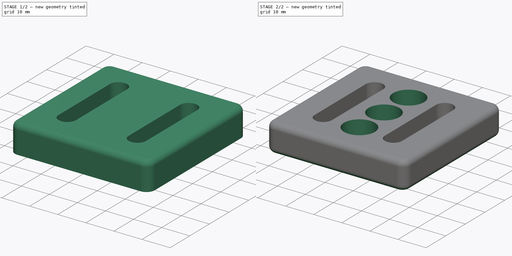
[diagram: build sequence overview — one tinted view per stage of 2, left to right]
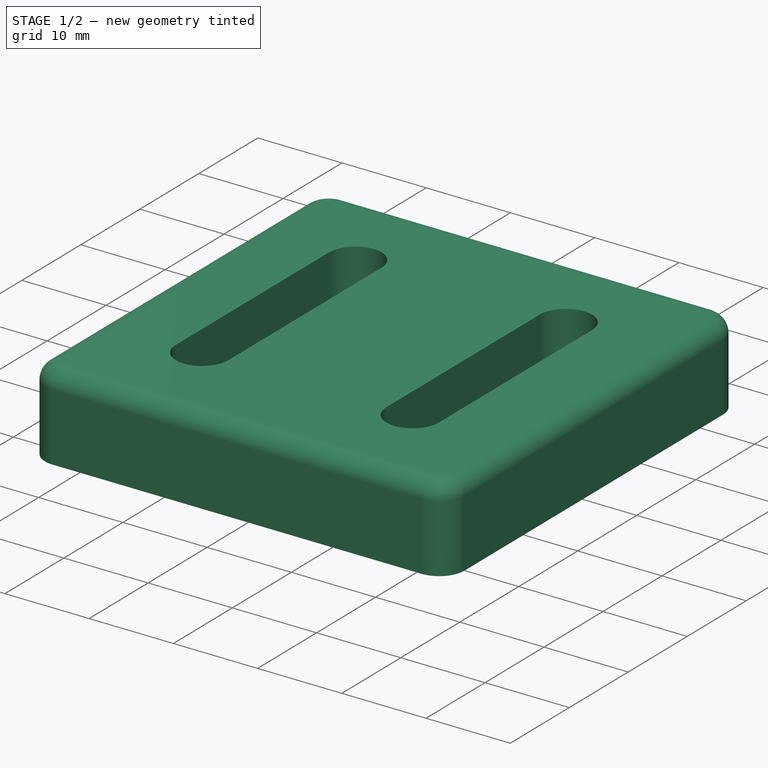
[diagram: stage 1 of 2 — iso view after this stage's code; geometry added in this stage tinted green]
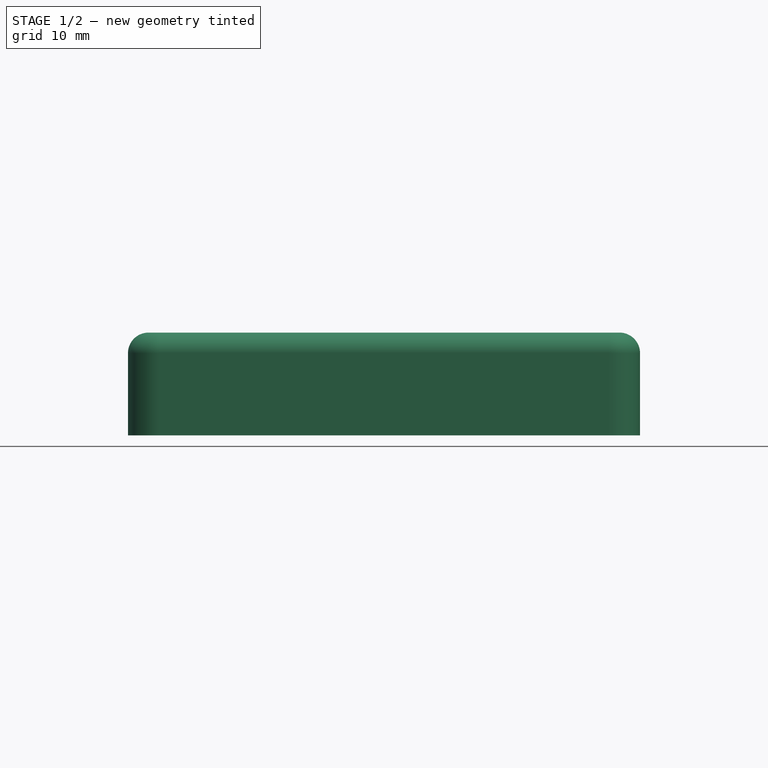
[diagram: stage 1 of 2 — front view after this stage's code; geometry added in this stage tinted green]
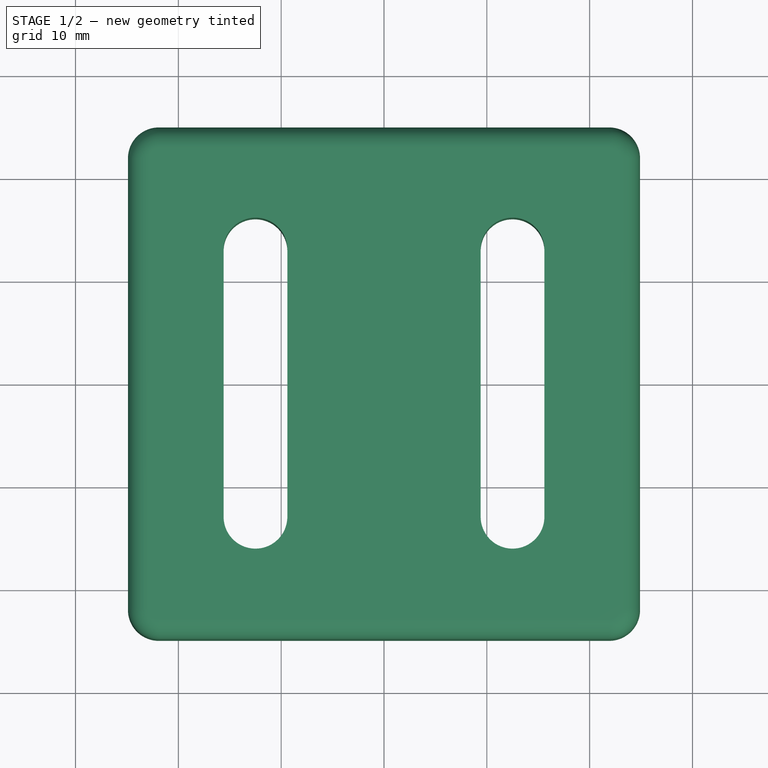
[diagram: stage 1 of 2 — top view after this stage's code; geometry added in this stage tinted green]
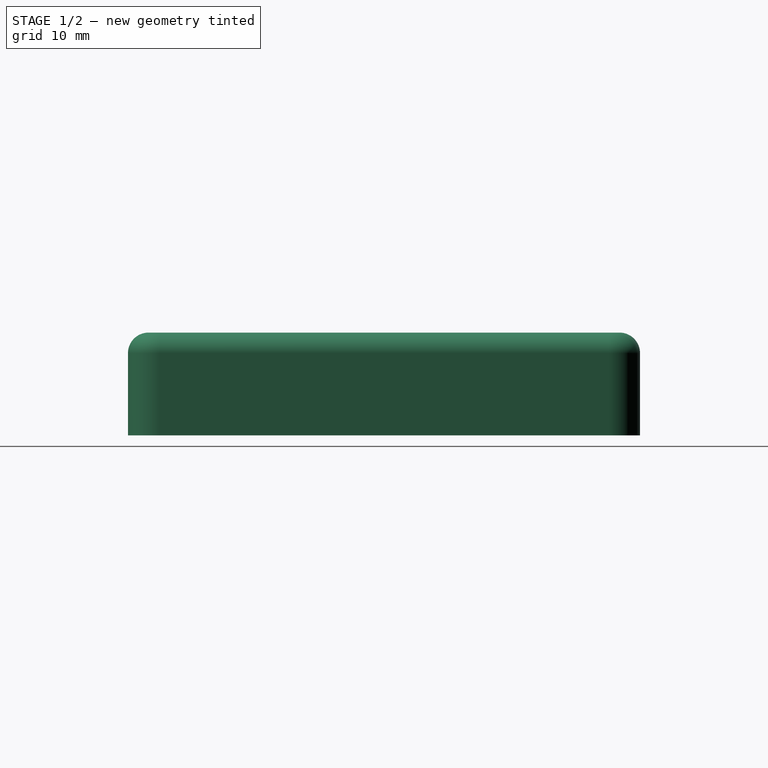
[diagram: stage 1 of 2 — right view after this stage's code; geometry added in this stage tinted green]
FCSTD DOCUMENT  (FreeCAD 0.20R29410 (Git))
Label: BasePlate-50x50
License: All rights reserved
LicenseURL: http://en.wikipedia.org/wiki/All_rights_reserved
objects: Sketcher::SketchObject×2, PartDesign::Fillet×2, PartDesign::Pad×1, PartDesign::Hole×1, PartDesign::Body×1
note: 11 computed .brp shape members not serialized (recipe doc carries the construction recipe); baked Part::Feature solids carry a one-line shape summary decoded from their .brp

FEATURE [Sketcher::SketchObject] Sketch
  FullyConstrained = true
  MapMode = 5
  Support = -> [XY_Plane]
  sketch-geometry (20):
    g0: LineSegment StartX=-21.9 StartY=24.9 StartZ=0 EndX=21.9 EndY=24.9 EndZ=0
    g1: LineSegment StartX=24.9 StartY=21.9 StartZ=0 EndX=24.9 EndY=-21.9 EndZ=0
    g2: LineSegment StartX=21.9 StartY=-24.9 StartZ=0 EndX=-21.9 EndY=-24.9 EndZ=0
    g3: LineSegment StartX=-24.9 StartY=-21.9 StartZ=0 EndX=-24.9 EndY=21.9 EndZ=0
    g4: ArcOfCircle CenterX=-12.5 CenterY=13 CenterZ=0 NormalX=0 NormalY=0 NormalZ=1 AngleXU=0 Radius=3.1 StartAngle=0 EndAngle=3.14159
    g5: ArcOfCircle CenterX=-12.5 CenterY=-13 CenterZ=0 NormalX=0 NormalY=0 NormalZ=1 AngleXU=0 Radius=3.1 StartAngle=3.14159 EndAngle=6.28319
    g6: LineSegment StartX=-15.6 StartY=13 StartZ=0 EndX=-15.6 EndY=-13 EndZ=0
    g7: LineSegment StartX=-9.4 StartY=-13 StartZ=0 EndX=-9.4 EndY=13 EndZ=0
    g8: ArcOfCircle CenterX=12.5 CenterY=13 CenterZ=0 NormalX=0 NormalY=0 NormalZ=1 AngleXU=0 Radius=3.1 StartAngle=2e-16 EndAngle=3.14159
    g9: ArcOfCircle CenterX=12.5 CenterY=-13 CenterZ=0 NormalX=0 NormalY=0 NormalZ=1 AngleXU=0 Radius=3.1 StartAngle=3.14159 EndAngle=6.28319
    g10: LineSegment StartX=9.4 StartY=13 StartZ=0 EndX=9.4 EndY=-13 EndZ=0
    g11: LineSegment StartX=15.6 StartY=-13 StartZ=0 EndX=15.6 EndY=13 EndZ=0
    g12: ArcOfCircle CenterX=-21.9 CenterY=21.9 CenterZ=0 NormalX=0 NormalY=0 NormalZ=1 AngleXU=0 Radius=3 StartAngle=1.5708 EndAngle=3.14159
    g13: GeomPoint X=-24.9 Y=24.9 Z=0
    g14: ArcOfCircle CenterX=21.9 CenterY=21.9 CenterZ=0 NormalX=0 NormalY=0 NormalZ=1 AngleXU=0 Radius=3 StartAngle=0 EndAngle=1.5708
    g15: GeomPoint X=24.9 Y=24.9 Z=0
    g16: ArcOfCircle CenterX=21.9 CenterY=-21.9 CenterZ=0 NormalX=0 NormalY=0 NormalZ=1 AngleXU=0 Radius=3 StartAngle=4.71239 EndAngle=6.28319
    g17: GeomPoint X=24.9 Y=-24.9 Z=0
    g18: ArcOfCircle CenterX=-21.9 CenterY=-21.9 CenterZ=0 NormalX=0 NormalY=0 NormalZ=1 AngleXU=0 Radius=3 StartAngle=3.14159 EndAngle=4.71239
    g19: GeomPoint X=-24.9 Y=-24.9 Z=0
  constraints (44):
    c: Horizontal(g0)
    c: Vertical(g3)
    c: Distance(g17,g15) = 49.8
    c: Distance(g19,g17) = 49.8
    c: Symmetric(g17,g19,g-2)
    c: Symmetric(g17,g15,g-1)
    c: Tangent(g4,g6) = -1.5708
    c: Tangent(g6,g5) = -1.5708
    c: Tangent(g5,g7) = -1.5708
    c: Tangent(g7,g4) = -1.5708
    c: Equal(g4,g5)
    c: Vertical(g6)
    c: Tangent(g8,g10) = -1.5708
    c: Tangent(g10,g9) = -1.5708
    c: Tangent(g9,g11) = -1.5708
    c: Tangent(g11,g8) = -1.5708
    c: Equal(g8,g9)
    c: Radius(g4) = 3.1
    c: Equal(g4,g8)
    c: Horizontal(g5,g9)
    c: DistanceX(g5,g9) = 25
    c: Symmetric(g8,g4,g-2)
    c: Symmetric(g9,g8,g-1)
    c: Distance(g8,g9) = 26
    c: PointOnObject(g13,g3)
    c: PointOnObject(g13,g0)
    c: Tangent(g3,g12) = 1.5708
    c: Tangent(g0,g12) = 1.5708
    c: PointOnObject(g15,g0)
    c: PointOnObject(g15,g1)
    c: Tangent(g0,g14) = 1.5708
    c: Tangent(g1,g14) = 1.5708
    c: PointOnObject(g17,g1)
    c: PointOnObject(g17,g2)
    c: Tangent(g1,g16) = 1.5708
    c: Tangent(g2,g16) = 1.5708
    c: PointOnObject(g19,g2)
    c: PointOnObject(g19,g3)
    c: Tangent(g2,g18) = 1.5708
    c: Tangent(g3,g18) = 1.5708
    c: Radius(g12) = 3
    c: Equal(g12,g14)
    c: Equal(g16,g12)
    c: Equal(g18,g12)
FEATURE [PartDesign::Pad] Pad
  Direction = (0,0,1)
  Length = 10
  Length2 = 10
  Profile = -> Sketch
  ReferenceAxis = -> Sketch [N_Axis]
  Refine = true
  Type = 0
FEATURE [PartDesign::Fillet] Fillet
  Base = -> Pad [Edge22]
  BaseFeature = -> Pad
  Radius = 2
  Refine = true
  SupportTransform = false
  UseAllEdges = false
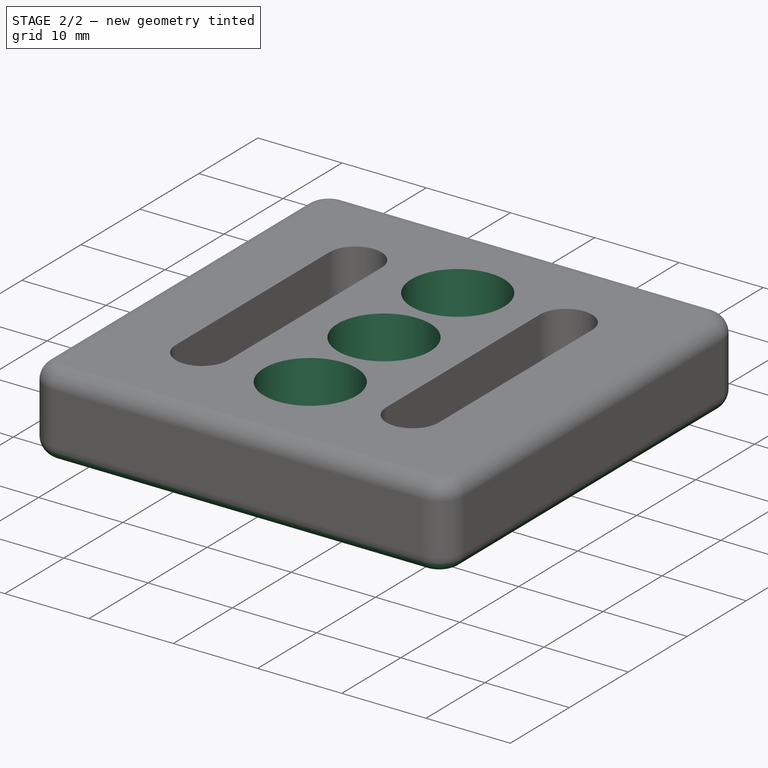
[diagram: stage 2 of 2 — iso view after this stage's code; geometry added in this stage tinted green]
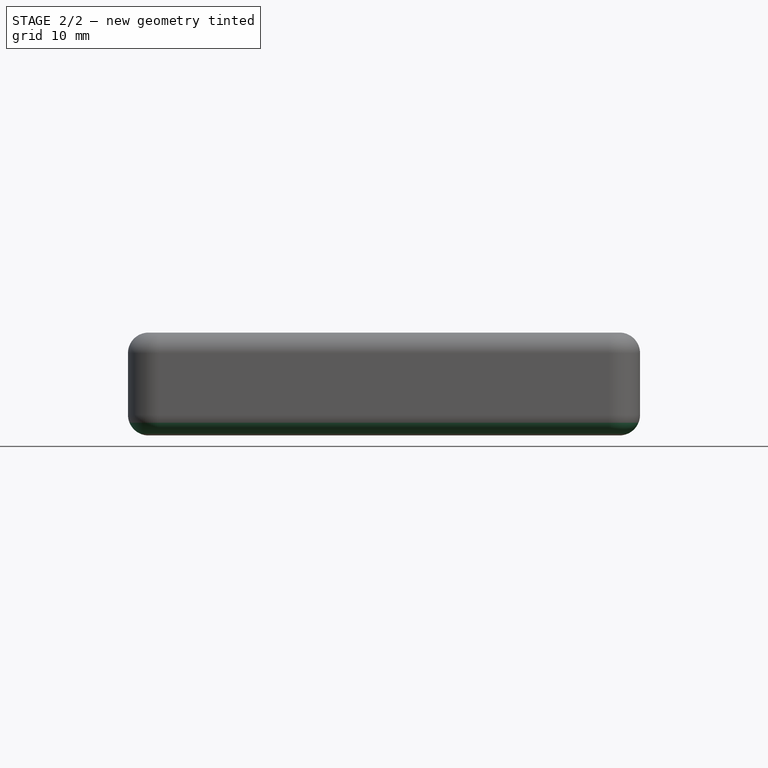
[diagram: stage 2 of 2 — front view after this stage's code; geometry added in this stage tinted green]
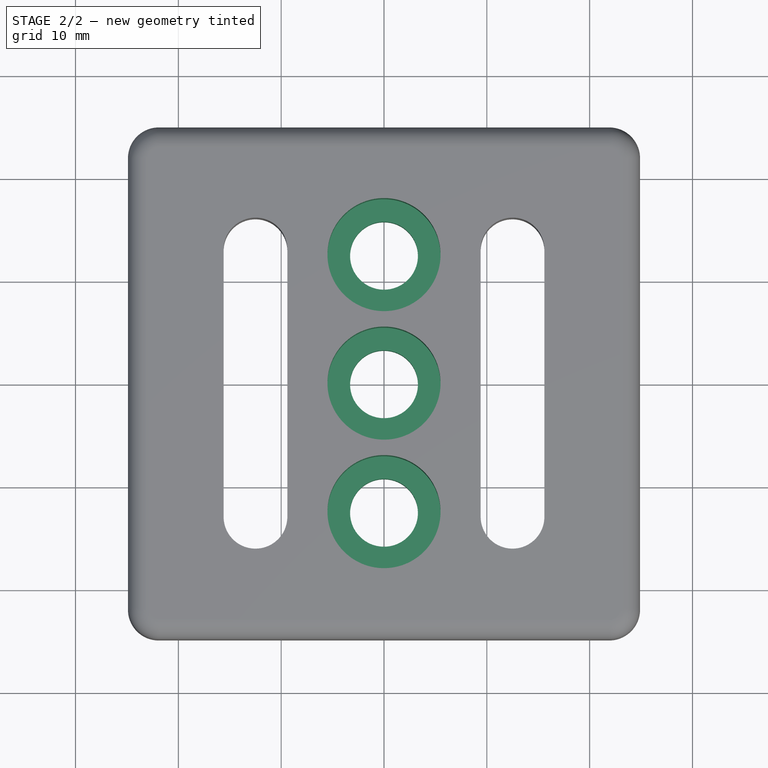
[diagram: stage 2 of 2 — top view after this stage's code; geometry added in this stage tinted green]
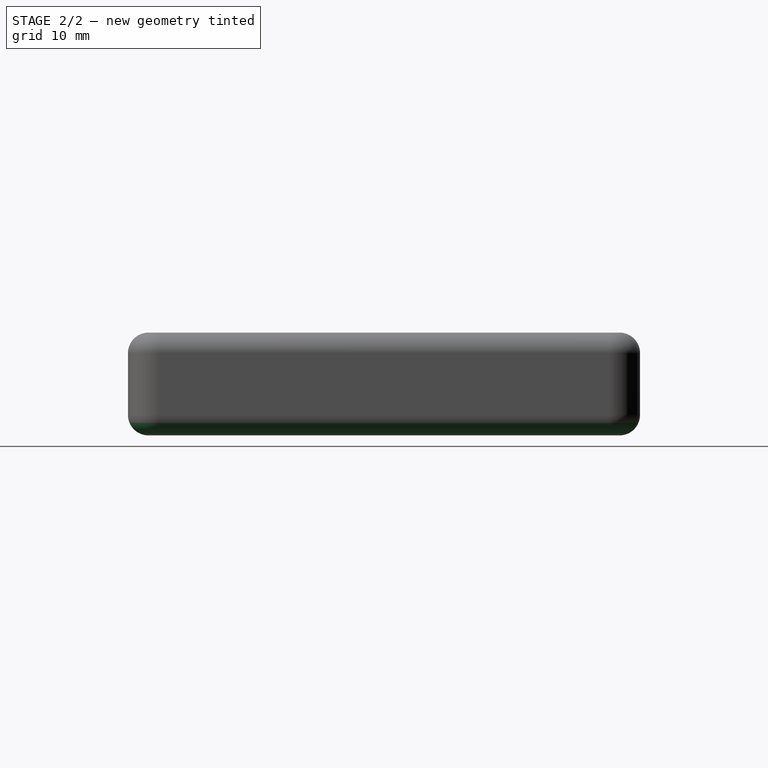
[diagram: stage 2 of 2 — right view after this stage's code; geometry added in this stage tinted green]
FEATURE [PartDesign::Fillet] Fillet001
  Base = -> Fillet [Edge16]
  BaseFeature = -> Fillet
  Radius = 2
  Refine = true
  SupportTransform = false
  UseAllEdges = false
FEATURE [Sketcher::SketchObject] Sketch001
  FullyConstrained = true
  MapMode = 5
  Placement = pos=(0,0,10) rot=(0,0,1;0rad)
  Support = -> [Fillet001]
  sketch-geometry (3):
    g0: Circle CenterX=0 CenterY=0 CenterZ=0 NormalX=0 NormalY=0 NormalZ=1 AngleXU=0 Radius=3
    g1: Circle CenterX=0 CenterY=12.5 CenterZ=0 NormalX=0 NormalY=0 NormalZ=1 AngleXU=0 Radius=3
    g2: Circle CenterX=0 CenterY=-12.5 CenterZ=0 NormalX=0 NormalY=0 NormalZ=1 AngleXU=0 Radius=3
  constraints (7):
    c: Coincident(g0,g-1)
    c: Diameter(g0) = 6
    c: PointOnObject(g1,g-2)
    c: Equal(g1,g0)
    c: Equal(g0,g2)
    c: Symmetric(g1,g2,g-1)
    c: Distance(g1,g2) = 25
FEATURE [PartDesign::Hole] Hole
  BaseFeature = -> Fillet001
  CustomThreadClearance = 0
  Depth = 25
  DepthType = 0
  Diameter = 6.6
  DrillForDepth = false
  DrillPoint = 1
  DrillPointAngle = 118
  HoleCutCountersinkAngle = 90
  HoleCutCustomValues = false
  HoleCutDepth = 6.4
  HoleCutDiameter = 11
  HoleCutType = 1
  ModelThread = false
  Profile = -> Sketch001
  Refine = true
  Tapered = false
  TaperedAngle = 90
  ThreadClass = 0
  ThreadDepth = 25
  ThreadDepthType = 0
  ThreadDirection = 0
  ThreadFit = 0
  ThreadSize = 14
  ThreadType = 1
  Threaded = false
  UseCustomThreadClearance = false
FEATURE [PartDesign::Body] Body
  Group = -> [Sketch,Pad,Fillet,Fillet001,Sketch001,Hole]
  Origin = -> Origin
  Tip = -> Hole
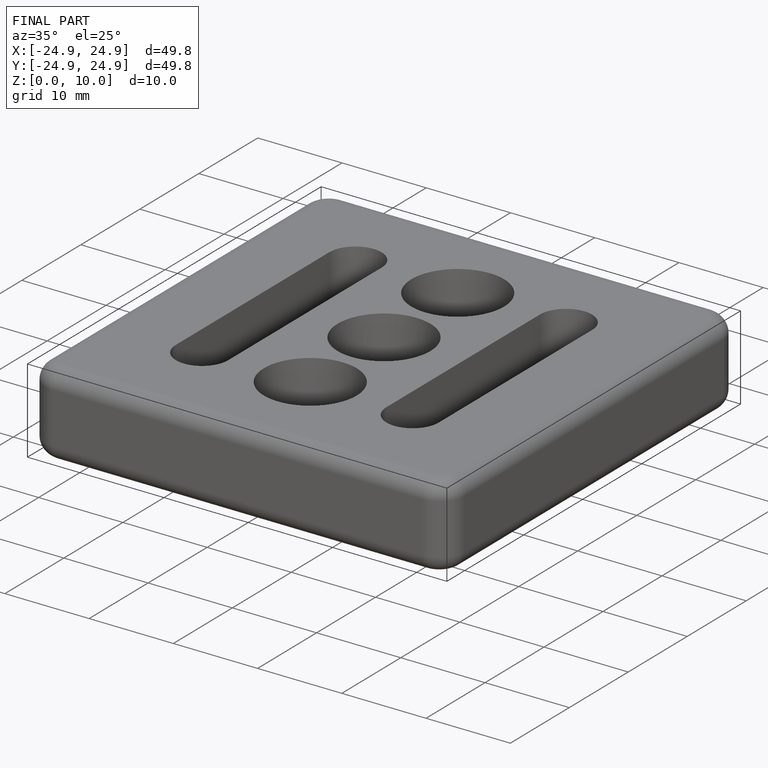
[diagram: finished part — iso view with bounding-box wireframe]
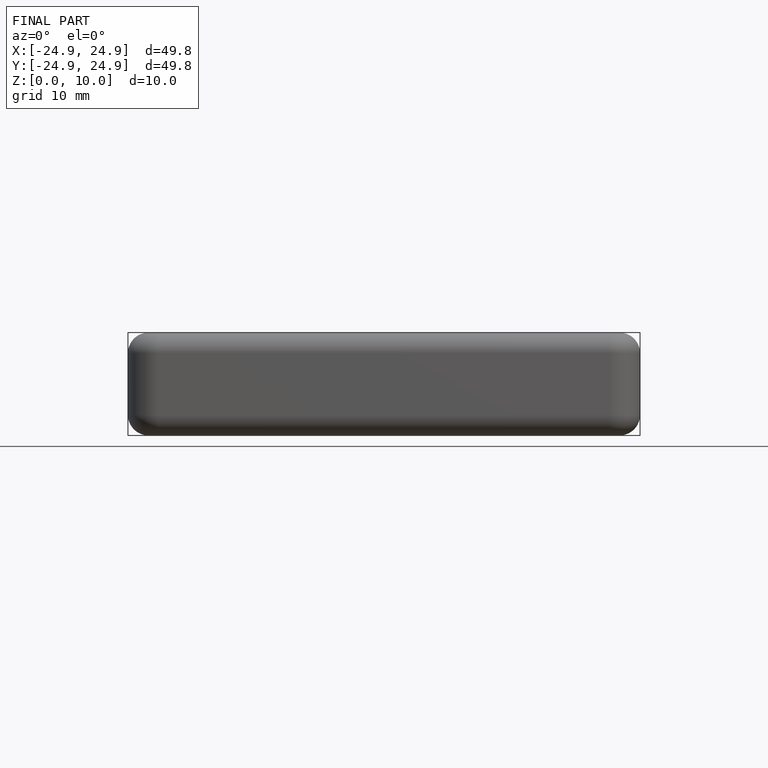
[diagram: finished part — front view with bounding-box wireframe]
